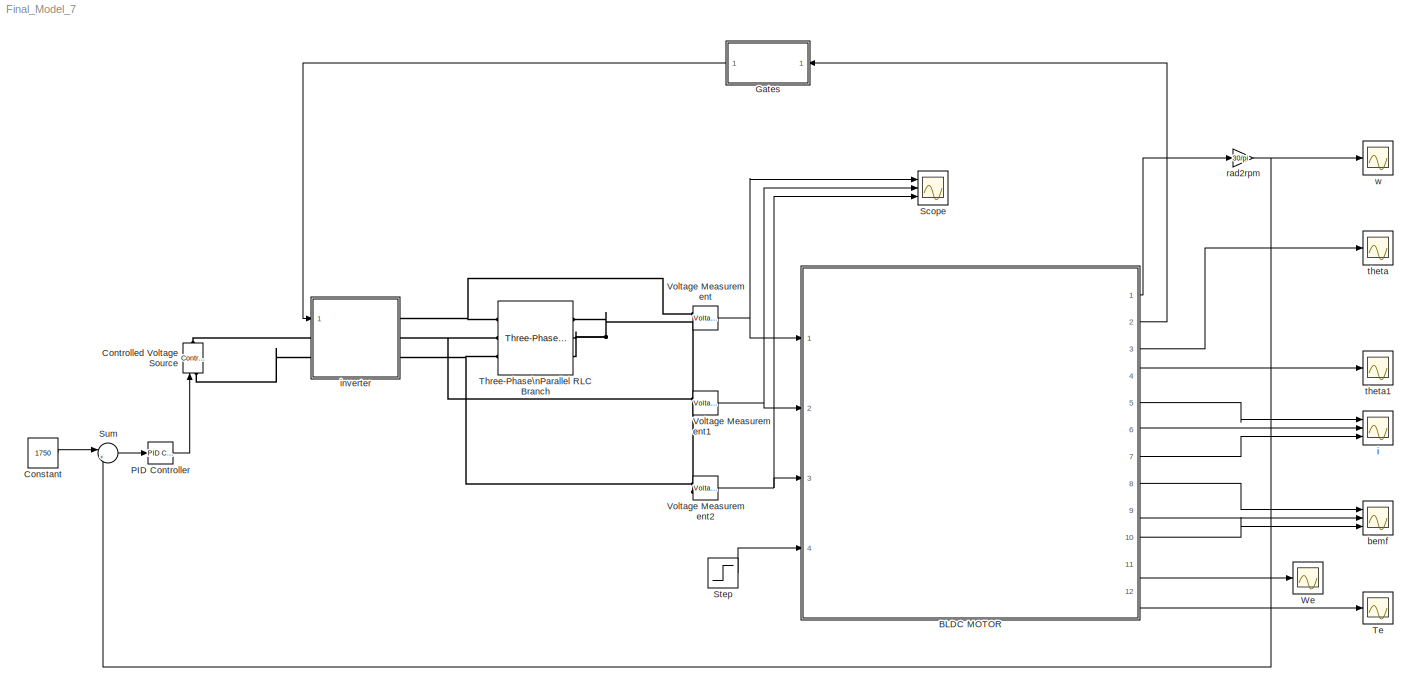
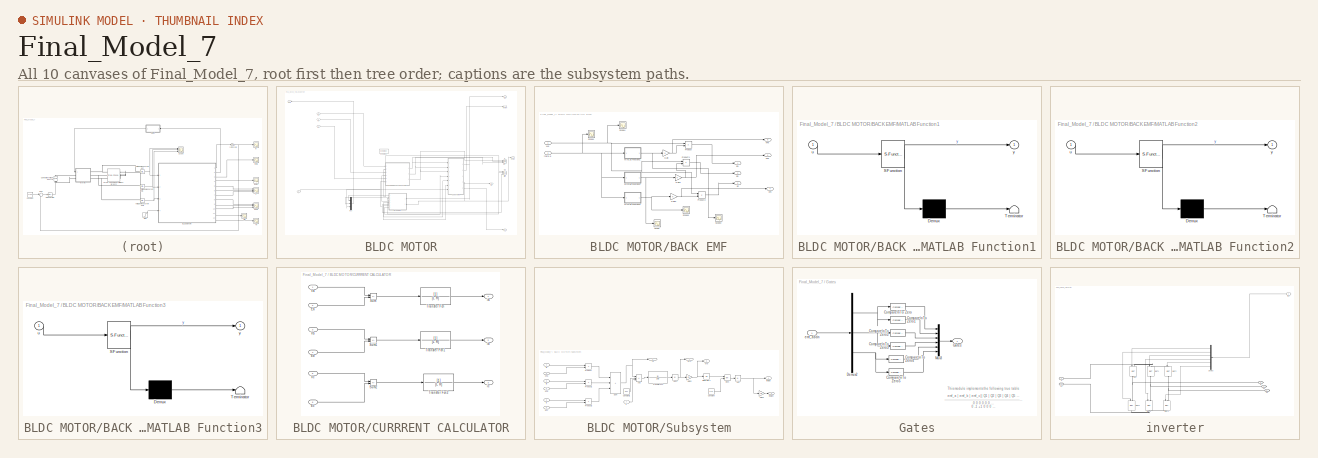
[diagram: thumbnail index - all 10 canvases of the model, root first then tree order]
MODEL Final_Model_7
KIND model
BLOCK [SubSystem] BLDC MOTOR
  Ports = [4, 12]
  RequestExecContextInheritance = off
  SID = 379
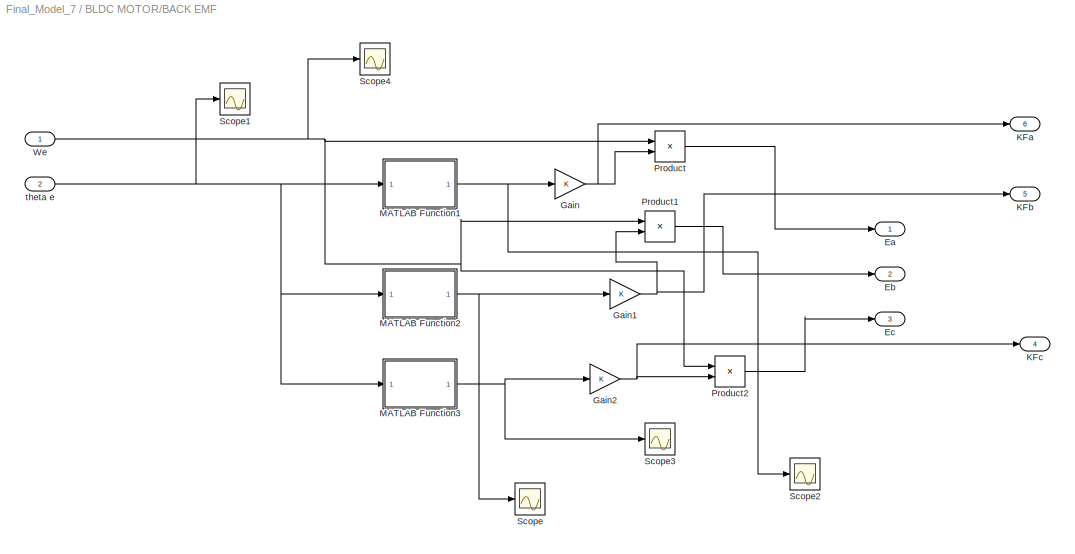
BLOCK [SubSystem] BLDC MOTOR/BACK EMF
  Ports = [2, 6]
  RequestExecContextInheritance = off
  SID = 146
BLOCK [Outport] BLDC MOTOR/BACK EMF/Ea
  SID = 148
BLOCK [Outport] BLDC MOTOR/BACK EMF/Eb
  Port = 2
  SID = 149
BLOCK [Outport] BLDC MOTOR/BACK EMF/Ec
  Port = 3
  SID = 150
BLOCK [Gain] BLDC MOTOR/BACK EMF/Gain
  Gain = K
  SID = 177
BLOCK [Gain] BLDC MOTOR/BACK EMF/Gain1
  Gain = K
  SID = 183
BLOCK [Gain] BLDC MOTOR/BACK EMF/Gain2
  Gain = K
  SID = 186
BLOCK [Outport] BLDC MOTOR/BACK EMF/KFa
  Port = 6
  SID = 187
BLOCK [Outport] BLDC MOTOR/BACK EMF/KFb
  Port = 5
  SID = 188
BLOCK [Outport] BLDC MOTOR/BACK EMF/KFc
  Port = 4
  SID = 189
BLOCK [SubSystem] BLDC MOTOR/BACK EMF/MATLAB Function1
  ErrorFcn = Stateflow.Translate.translate
  PermitHierarchicalResolution = ExplicitOnly
  Ports = [1, 1]
  RequestExecContextInheritance = off
  SFBlockType = MATLAB Function
  SID = 233
  TreatAsAtomicUnit = on
BLOCK [Demux] BLDC MOTOR/BACK EMF/MATLAB Function1/ Demux 
  Outputs = 1
  Ports = [1, 1]
  SID = 233::41
BLOCK [S-Function] BLDC MOTOR/BACK EMF/MATLAB Function1/ SFunction 
  EnableBusSupport = on
  FunctionName = sf_sfun
  PortCounts = [1 2]
  Ports = [1, 2]
  SFcnIsStateOwnerBlock = off
  SFunctionDeploymentMode = off
  SID = 233::40
  Tag = Stateflow S-Function 1
BLOCK [Terminator] BLDC MOTOR/BACK EMF/MATLAB Function1/ Terminator 
  SID = 233::42
BLOCK [Inport] BLDC MOTOR/BACK EMF/MATLAB Function1/u
  SID = 233::1
BLOCK [Outport] BLDC MOTOR/BACK EMF/MATLAB Function1/y
  SID = 233::5
BLOCK [SubSystem] BLDC MOTOR/BACK EMF/MATLAB Function2
  ErrorFcn = Stateflow.Translate.translate
  PermitHierarchicalResolution = ExplicitOnly
  Ports = [1, 1]
  RequestExecContextInheritance = off
  SFBlockType = MATLAB Function
  SID = 243
  TreatAsAtomicUnit = on
BLOCK [Demux] BLDC MOTOR/BACK EMF/MATLAB Function2/ Demux 
  Outputs = 1
  Ports = [1, 1]
  SID = 243::41
BLOCK [S-Function] BLDC MOTOR/BACK EMF/MATLAB Function2/ SFunction 
  EnableBusSupport = on
  FunctionName = sf_sfun
  PortCounts = [1 2]
  Ports = [1, 2]
  SFcnIsStateOwnerBlock = off
  SFunctionDeploymentMode = off
  SID = 243::40
  Tag = Stateflow S-Function 2
BLOCK [Terminator] BLDC MOTOR/BACK EMF/MATLAB Function2/ Terminator 
  SID = 243::42
BLOCK [Inport] BLDC MOTOR/BACK EMF/MATLAB Function2/u
  SID = 243::1
BLOCK [Outport] BLDC MOTOR/BACK EMF/MATLAB Function2/y
  SID = 243::5
BLOCK [SubSystem] BLDC MOTOR/BACK EMF/MATLAB Function3
  ErrorFcn = Stateflow.Translate.translate
  PermitHierarchicalResolution = ExplicitOnly
  Ports = [1, 1]
  RequestExecContextInheritance = off
  SFBlockType = MATLAB Function
  SID = 246
  TreatAsAtomicUnit = on
BLOCK [Demux] BLDC MOTOR/BACK EMF/MATLAB Function3/ Demux 
  Outputs = 1
  Ports = [1, 1]
  SID = 246::41
BLOCK [S-Function] BLDC MOTOR/BACK EMF/MATLAB Function3/ SFunction 
  EnableBusSupport = on
  FunctionName = sf_sfun
  PortCounts = [1 2]
  Ports = [1, 2]
  SFcnIsStateOwnerBlock = off
  SFunctionDeploymentMode = off
  SID = 246::40
  Tag = Stateflow S-Function 3
BLOCK [Terminator] BLDC MOTOR/BACK EMF/MATLAB Function3/ Terminator 
  SID = 246::42
BLOCK [Inport] BLDC MOTOR/BACK EMF/MATLAB Function3/u
  SID = 246::1
BLOCK [Outport] BLDC MOTOR/BACK EMF/MATLAB Function3/y
  SID = 246::5
BLOCK [Product] BLDC MOTOR/BACK EMF/Product
  Ports = [2, 1]
  SID = 178
BLOCK [Product] BLDC MOTOR/BACK EMF/Product1
  Ports = [2, 1]
  SID = 182
BLOCK [Product] BLDC MOTOR/BACK EMF/Product2
  Ports = [2, 1]
  SID = 185
BLOCK [Scope] BLDC MOTOR/BACK EMF/Scope
  Floating = off
  NumInputPorts = 1
  Ports = [1]
  SID = 283
  ScopeSpecificationString = Simulink.scopes.TimeScopeBlockCfg('CurrentConfiguration', extmgr.ConfigurationSet(extmgr.Configuration('Core','General UI',true,'FigureColor',[0.156862745098039 0.156862745098039 0.156862745098039]),extmgr.Configuration('Core','Source UI',true),extmgr.Configuration('Sources','WiredSimulink',true,'DataLoggingVariableName','ScopeData4','DataLoggingSaveFormat','StructureWithTime','DataLoggingDecimati...<+3138ch>
BLOCK [Scope] BLDC MOTOR/BACK EMF/Scope1
  Floating = off
  NumInputPorts = 1
  Ports = [1]
  SID = 253
  ScopeSpecificationString = Simulink.scopes.TimeScopeBlockCfg('CurrentConfiguration', extmgr.ConfigurationSet(extmgr.Configuration('Core','General UI',true,'FigureColor',[0.156862745098039 0.156862745098039 0.156862745098039]),extmgr.Configuration('Core','Source UI',true),extmgr.Configuration('Sources','WiredSimulink',true,'DataLoggingVariableName','ScopeData1','DataLoggingSaveFormat','StructureWithTime','DataLoggingDecimati...<+3124ch>
BLOCK [Scope] BLDC MOTOR/BACK EMF/Scope2
  Floating = off
  NumInputPorts = 1
  Ports = [1]
  SID = 284
  ScopeSpecificationString = Simulink.scopes.TimeScopeBlockCfg('CurrentConfiguration', extmgr.ConfigurationSet(extmgr.Configuration('Core','General UI',true,'FigureColor',[0.156862745098039 0.156862745098039 0.156862745098039]),extmgr.Configuration('Core','Source UI',true),extmgr.Configuration('Sources','WiredSimulink',true,'DataLoggingVariableName','ScopeData1','DataLoggingSaveFormat','StructureWithTime','DataLoggingDecimati...<+3121ch>
BLOCK [Scope] BLDC MOTOR/BACK EMF/Scope3
  Floating = off
  NumInputPorts = 1
  Ports = [1]
  SID = 285
  ScopeSpecificationString = Simulink.scopes.TimeScopeBlockCfg('CurrentConfiguration', extmgr.ConfigurationSet(extmgr.Configuration('Core','General UI',true,'FigureColor',[0.156862745098039 0.156862745098039 0.156862745098039]),extmgr.Configuration('Core','Source UI',true),extmgr.Configuration('Sources','WiredSimulink',true,'DataLoggingVariableName','ScopeData3','DataLoggingSaveFormat','StructureWithTime','DataLoggingDecimati...<+3122ch>
BLOCK [Scope] BLDC MOTOR/BACK EMF/Scope4
  Floating = off
  NumInputPorts = 1
  Ports = [1]
  SID = 276
  ScopeSpecificationString = Simulink.scopes.TimeScopeBlockCfg('CurrentConfiguration', extmgr.ConfigurationSet(extmgr.Configuration('Core','General UI',true,'FigureColor',[0.156862745098039 0.156862745098039 0.156862745098039]),extmgr.Configuration('Core','Source UI',true),extmgr.Configuration('Sources','WiredSimulink',true,'DataLoggingVariableName','ScopeData2','DataLoggingSaveFormat','StructureWithTime','DataLoggingDecimati...<+3127ch>
BLOCK [Inport] BLDC MOTOR/BACK EMF/We
  SID = 147
BLOCK [Inport] BLDC MOTOR/BACK EMF/theta e
  Port = 2
  SID = 172
BLOCK [SubSystem] BLDC MOTOR/CURRRENT CALCULATOR
  Ports = [6, 3]
  RequestExecContextInheritance = off
  SID = 120
BLOCK [Inport] BLDC MOTOR/CURRRENT CALCULATOR/Ea
  Port = 2
  SID = 122
BLOCK [Inport] BLDC MOTOR/CURRRENT CALCULATOR/Eb
  Port = 4
  SID = 124
BLOCK [Inport] BLDC MOTOR/CURRRENT CALCULATOR/Ec
  Port = 6
  SID = 126
BLOCK [Sum] BLDC MOTOR/CURRRENT CALCULATOR/Sum
  IconShape = rectangular
  Inputs = +-
  Ports = [2, 1]
  SID = 136
BLOCK [Sum] BLDC MOTOR/CURRRENT CALCULATOR/Sum1
  IconShape = rectangular
  Inputs = +-
  Ports = [2, 1]
  SID = 137
BLOCK [Sum] BLDC MOTOR/CURRRENT CALCULATOR/Sum2
  IconShape = rectangular
  Inputs = +-
  Ports = [2, 1]
  SID = 138
BLOCK [TransferFcn] BLDC MOTOR/CURRRENT CALCULATOR/Transfer Fcn
  Denominator = [L R]
  SID = 266
BLOCK [TransferFcn] BLDC MOTOR/CURRRENT CALCULATOR/Transfer Fcn1
  Denominator = [L R]
  SID = 267
BLOCK [TransferFcn] BLDC MOTOR/CURRRENT CALCULATOR/Transfer Fcn2
  Denominator = [L R]
  SID = 268
BLOCK [Inport] BLDC MOTOR/CURRRENT CALCULATOR/Va
  SID = 121
BLOCK [Inport] BLDC MOTOR/CURRRENT CALCULATOR/Vb
  Port = 3
  SID = 123
BLOCK [Inport] BLDC MOTOR/CURRRENT CALCULATOR/Vc
  Port = 5
  SID = 125
BLOCK [Outport] BLDC MOTOR/CURRRENT CALCULATOR/ia
  SID = 139
BLOCK [Outport] BLDC MOTOR/CURRRENT CALCULATOR/ib
  Port = 2
  SID = 140
BLOCK [Outport] BLDC MOTOR/CURRRENT CALCULATOR/ic
  Port = 3
  SID = 141
BLOCK [Outport] BLDC MOTOR/Ea
  Port = 8
  SID = 391
BLOCK [Outport] BLDC MOTOR/Eb
  Port = 9
  SID = 392
BLOCK [Outport] BLDC MOTOR/Ec
  Port = 10
  SID = 393
BLOCK [Mux] BLDC MOTOR/Mux
  DisplayOption = bar
  Inputs = 3
  Ports = [3, 1]
  SID = 303
BLOCK [Outport] BLDC MOTOR/Out2
  Port = 2
  SID = 385
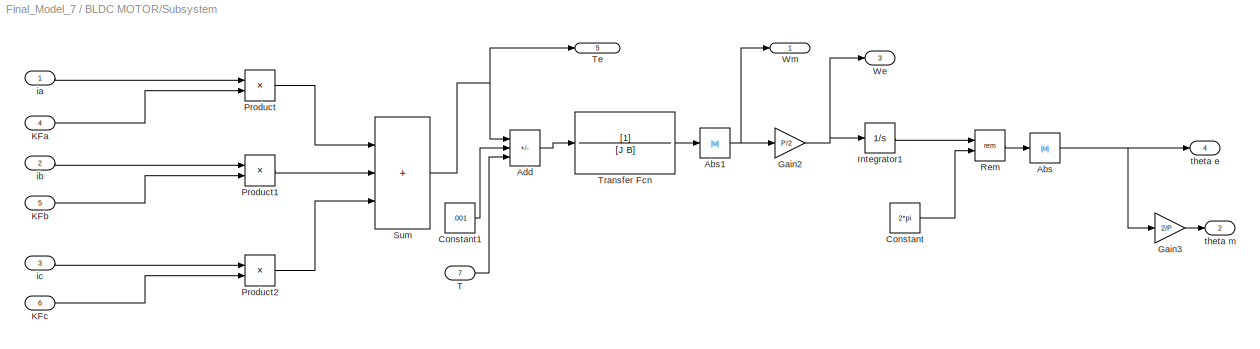
BLOCK [SubSystem] BLDC MOTOR/Subsystem
  Ports = [7, 5]
  RequestExecContextInheritance = off
  SID = 151
BLOCK [Abs] BLDC MOTOR/Subsystem/Abs
  SID = 373
  SaturateOnIntegerOverflow = off
BLOCK [Abs] BLDC MOTOR/Subsystem/Abs1
  SID = 400
  SaturateOnIntegerOverflow = off
BLOCK [Sum] BLDC MOTOR/Subsystem/Add
  IconShape = rectangular
  Inputs = ++-
  Ports = [3, 1]
  SID = 194
BLOCK [Constant] BLDC MOTOR/Subsystem/Constant
  SID = 249
  Value = 2*pi
BLOCK [Constant] BLDC MOTOR/Subsystem/Constant1
  SID = 456
  Value = .001
BLOCK [Gain] BLDC MOTOR/Subsystem/Gain2
  Gain = P/2
  SID = 201
BLOCK [Gain] BLDC MOTOR/Subsystem/Gain3
  Gain = 2/P
  SID = 204
BLOCK [Integrator] BLDC MOTOR/Subsystem/Integrator1
  Ports = [1, 1]
  SID = 202
BLOCK [Inport] BLDC MOTOR/Subsystem/KFa
  Port = 4
  SID = 190
BLOCK [Inport] BLDC MOTOR/Subsystem/KFb
  Port = 5
  SID = 191
BLOCK [Inport] BLDC MOTOR/Subsystem/KFc
  Port = 6
  SID = 192
BLOCK [Product] BLDC MOTOR/Subsystem/Product
  Ports = [2, 1]
  SID = 160
BLOCK [Product] BLDC MOTOR/Subsystem/Product1
  Ports = [2, 1]
  SID = 161
BLOCK [Product] BLDC MOTOR/Subsystem/Product2
  Ports = [2, 1]
  SID = 162
BLOCK [Math] BLDC MOTOR/Subsystem/Rem
  Operator = rem
  Ports = [2, 1]
  SID = 271
  SignedPower = on
BLOCK [Sum] BLDC MOTOR/Subsystem/Sum
  IconShape = rectangular
  Inputs = +++
  Ports = [3, 1]
  SID = 163
BLOCK [Inport] BLDC MOTOR/Subsystem/T
  Port = 7
  SID = 195
BLOCK [Outport] BLDC MOTOR/Subsystem/Te
  Port = 5
  SID = 261
BLOCK [TransferFcn] BLDC MOTOR/Subsystem/Transfer Fcn
  Denominator = [J B]
  SID = 260
BLOCK [Outport] BLDC MOTOR/Subsystem/We
  Port = 3
  SID = 166
BLOCK [Outport] BLDC MOTOR/Subsystem/Wm
  SID = 153
BLOCK [Inport] BLDC MOTOR/Subsystem/ia
  SID = 152
BLOCK [Inport] BLDC MOTOR/Subsystem/ib
  Port = 2
  SID = 155
BLOCK [Inport] BLDC MOTOR/Subsystem/ic
  Port = 3
  SID = 156
BLOCK [Outport] BLDC MOTOR/Subsystem/theta e
  Port = 4
  SID = 167
BLOCK [Outport] BLDC MOTOR/Subsystem/theta m
  Port = 2
  SID = 203
BLOCK [Inport] BLDC MOTOR/T
  Port = 4
  SID = 383
BLOCK [Outport] BLDC MOTOR/Te
  Port = 12
  SID = 395
BLOCK [Inport] BLDC MOTOR/Va
  SID = 380
BLOCK [Inport] BLDC MOTOR/Vb
  Port = 2
  SID = 381
BLOCK [Inport] BLDC MOTOR/Vc
  Port = 3
  SID = 382
BLOCK [Outport] BLDC MOTOR/We
  Port = 11
  SID = 394
BLOCK [Outport] BLDC MOTOR/Wm
  SID = 384
BLOCK [Outport] BLDC MOTOR/ia
  Port = 7
  SID = 390
BLOCK [Outport] BLDC MOTOR/ib
  Port = 6
  SID = 389
BLOCK [Outport] BLDC MOTOR/ic
  Port = 5
  SID = 388
BLOCK [Reference] BLDC MOTOR/powergui  REF=powerlib/powergui
  AutomaticDiscreteSolvers = off
  ContinueOnMaxIteration = off
  CurrentSourceSwitches = off
  DisableRonSwitches = off
  DisableSnubberDevices = off
  DisableVfSwitches = off
  DisplayEquations = off
  DisplayStyle = 1
  EnableUseOfTLC = off
  ErrMax = 1e-4
  ExternalGateDelay = off
  Frange = [0:2:500]
  FreqAxis = off
  FunctionMessages = off
  HookPort = off
  Interpol = off
  Iterations = 50
  MaxFrequency = 1000
  NonlinearTolerance = 1e-4
  Pbase = 100e6
  Ports = []
  Priority = 1
  RTWMemSecDataConstants = Inherit from model
  RTWMemSecDataInternal = Inherit from model
  RTWMemSecDataParameters = Inherit from model
  RTWMemSecFuncExecute = Inherit from model
  RTWMemSecFuncInitTerm = Inherit from model
  ResistiveCurrentMeasurement = off
  RestoreLinks = warning
  RmsSteady = 1
  SID = 364
  SPID = on
  SampleTime = 50e-6
  ShowGrid = off
  SolverType = Tustin/Backward Euler (TBE)
  SourceBlock = powerlib/powergui
  SourceProductBaseCode = PS
  SourceType = PSB option menu block
  StartTime = 0.0
  SwTol = 0
  Ts = 100
  UnitsV = kV
  UnitsW = MW
  Xlog = on
  Ylog = off
  ZoomFFT = off
  buscounter = 0
  cycles = 1
  display = off
  echomessages = off
  frequency = 60
  frequencyindice = 0
  frequencyindicesteady = 1
  fundamental = 60
  methode = off
  nMaxIteration = 100
  save = off
  structure = 0
  variable = ZData
  x0status = blocks
BLOCK [Outport] BLDC MOTOR/theta e
  Port = 4
  SID = 387
BLOCK [Outport] BLDC MOTOR/theta m
  Port = 3
  SID = 386
BLOCK [Constant] Constant
  SID = 457
  Value = 1750
BLOCK [Reference] Controlled Voltage Source  REF=powerlib/Electrical\nSources/Controlled Voltage Source
  Amplitude = 300
  Frequency = 50
  Initialize = on
  Measurements = Voltage
  NameLocation = right
  Phase = 0
  Ports = [1, 0, 0, 0, 0, 1, 1]
  RTWMemSecDataConstants = Inherit from model
  RTWMemSecDataInternal = Inherit from model
  RTWMemSecDataParameters = Inherit from model
  RTWMemSecFuncExecute = Inherit from model
  RTWMemSecFuncInitTerm = Inherit from model
  SID = 458
  SourceBlock = powerlib/Electrical\nSources/Controlled Voltage Source
  SourceProductBaseCode = PS
  SourceType = Controlled Voltage Source
  Source_Type = DC
BLOCK [SubSystem] Gates
  NameLocation = top
  Ports = [1, 1]
  RequestExecContextInheritance = off
  SID = 350
BLOCK [Reference] Gates/Compare\nTo Zero  REF=simulink/Logic and Bit\nOperations/Compare\nTo Zero
  OutDataTypeStr = boolean
  Ports = [1, 1]
  RTWMemSecDataConstants = Inherit from model
  RTWMemSecDataInternal = Inherit from model
  RTWMemSecDataParameters = Inherit from model
  RTWMemSecFuncExecute = Inherit from model
  RTWMemSecFuncInitTerm = Inherit from model
  SID = 352
  SourceBlock = simulink/Logic and Bit\nOperations/Compare\nTo Zero
  SourceProductBaseCode = SL
  SourceType = Compare To Zero
  ZeroCross = off
  relop = >
BLOCK [Reference] Gates/Compare\nTo Zero1  REF=simulink/Logic and Bit\nOperations/Compare\nTo Zero
  OutDataTypeStr = boolean
  Ports = [1, 1]
  RTWMemSecDataConstants = Inherit from model
  RTWMemSecDataInternal = Inherit from model
  RTWMemSecDataParameters = Inherit from model
  RTWMemSecFuncExecute = Inherit from model
  RTWMemSecFuncInitTerm = Inherit from model
  SID = 353
  SourceBlock = simulink/Logic and Bit\nOperations/Compare\nTo Zero
  SourceProductBaseCode = SL
  SourceType = Compare To Zero
  ZeroCross = off
  relop = <
BLOCK [Reference] Gates/Compare\nTo Zero2  REF=simulink/Logic and Bit\nOperations/Compare\nTo Zero
  OutDataTypeStr = boolean
  Ports = [1, 1]
  RTWMemSecDataConstants = Inherit from model
  RTWMemSecDataInternal = Inherit from model
  RTWMemSecDataParameters = Inherit from model
  RTWMemSecFuncExecute = Inherit from model
  RTWMemSecFuncInitTerm = Inherit from model
  SID = 354
  SourceBlock = simulink/Logic and Bit\nOperations/Compare\nTo Zero
  SourceProductBaseCode = SL
  SourceType = Compare To Zero
  ZeroCross = off
  relop = >
BLOCK [Reference] Gates/Compare\nTo Zero3  REF=simulink/Logic and Bit\nOperations/Compare\nTo Zero
  OutDataTypeStr = boolean
  Ports = [1, 1]
  RTWMemSecDataConstants = Inherit from model
  RTWMemSecDataInternal = Inherit from model
  RTWMemSecDataParameters = Inherit from model
  RTWMemSecFuncExecute = Inherit from model
  RTWMemSecFuncInitTerm = Inherit from model
  SID = 355
  SourceBlock = simulink/Logic and Bit\nOperations/Compare\nTo Zero
  SourceProductBaseCode = SL
  SourceType = Compare To Zero
  ZeroCross = off
  relop = <
BLOCK [Reference] Gates/Compare\nTo Zero4  REF=simulink/Logic and Bit\nOperations/Compare\nTo Zero
  OutDataTypeStr = boolean
  Ports = [1, 1]
  RTWMemSecDataConstants = Inherit from model
  RTWMemSecDataInternal = Inherit from model
  RTWMemSecDataParameters = Inherit from model
  RTWMemSecFuncExecute = Inherit from model
  RTWMemSecFuncInitTerm = Inherit from model
  SID = 356
  SourceBlock = simulink/Logic and Bit\nOperations/Compare\nTo Zero
  SourceProductBaseCode = SL
  SourceType = Compare To Zero
  ZeroCross = off
  relop = >
BLOCK [Reference] Gates/Compare\nTo Zero5  REF=simulink/Logic and Bit\nOperations/Compare\nTo Zero
  OutDataTypeStr = boolean
  Ports = [1, 1]
  RTWMemSecDataConstants = Inherit from model
  RTWMemSecDataInternal = Inherit from model
  RTWMemSecDataParameters = Inherit from model
  RTWMemSecFuncExecute = Inherit from model
  RTWMemSecFuncInitTerm = Inherit from model
  SID = 357
  SourceBlock = simulink/Logic and Bit\nOperations/Compare\nTo Zero
  SourceProductBaseCode = SL
  SourceType = Compare To Zero
  ZeroCross = off
  relop = <
BLOCK [Demux] Gates/Demux2
  Outputs = 3
  Ports = [1, 3]
  SID = 358
BLOCK [Outport] Gates/Gates
  SID = 360
BLOCK [Mux] Gates/Mux3
  DisplayOption = bar
  Inputs = 6
  Ports = [6, 1]
  SID = 359
BLOCK [Inport] Gates/emf_abc\n
  SID = 351
BLOCK [Reference] PID Controller  REF=simulink/Continuous/PID Controller
  AWVariant = Passthrough
  AntiWindupMode = none
  Controller = PI
  ControllerParametersSource = internal
  D = 0
  DGainOutDataTypeStr = Inherit: Inherit via internal rule
  DOutMax = []
  DOutMin = []
  DParamDataTypeStr = Inherit: Inherit via internal rule
  DParamMax = []
  DParamMin = []
  DProdOutDataTypeStr = Inherit: Inherit via internal rule
  DVariant = Disabled
  DerivativeFilterVariant = Disabled
  DifferentiatorICPrevScaledInput = 0
  DifferentiatorOutDataTypeStr = Inherit: Inherit via internal rule
  DifferentiatorOutMax = []
  DifferentiatorOutMin = []
  DivideOutDataTypeStr = Inherit: Inherit via internal rule
  DivideOutMax = []
  DivideOutMin = []
  ExternalReset = none
  ExternalResetVariant = Disabled
  FdbkBlocksVariant = Forward
  FilterContinuousStateAttributes = ''
  FilterDiffDenAccumDataTypeStr = Inherit: Inherit via internal rule
  FilterDiffDenProductOutputDataTypeStr = Inherit: Inherit via internal rule
  FilterDiffNumAccumDataTypeStr = Inherit: Inherit via internal rule
  FilterDiffNumProductOutputDataTypeStr = Inherit: Inherit via internal rule
  FilterDiffOutCoefDataTypeStr = Inherit: Inherit via internal rule
  FilterDiffOutCoefMax = []
  FilterDiffOutCoefMin = []
  FilterICVariant = Disabled
  FilterMethod = Forward Euler
  FilterOutDataTypeStr = Inherit: Inherit via internal rule
  FilterOutMax = []
  FilterOutMin = []
  FilterRTWStateStorageClass = Auto
  FilterStateMustResolveToSignalObject = off
  Form = Parallel
  I = 33.4987439489544
  IGainOutDataTypeStr = Inherit: Inherit via internal rule
  IOutMax = []
  IOutMin = []
  IParamDataTypeStr = Inherit: Inherit via internal rule
  IParamMax = []
  IParamMin = []
  IProdOutDataTypeStr = Inherit: Inherit via internal rule
  IVariant = InternalParameters
  IdealPFdbkVariant = Disabled
  IdealPVariant = Disabled
  IgnoreLimit = off
  InitialConditionForFilter = 0
  InitialConditionForIntegrator = 0
  InitialConditionSetting = Auto
  InitialConditionSource = internal
  IntegratorContinuousStateAttributes = ''
  IntegratorICVariant = InternalICs
  IntegratorMethod = Forward Euler
  IntegratorOutDataTypeStr = Inherit: Inherit via internal rule
  IntegratorOutMax = []
  IntegratorOutMin = []
  IntegratorRTWStateStorageClass = Auto
  IntegratorStateMustResolveToSignalObject = off
  IntegratorVariant = Continuous
  Kb = 1
  KbOutDataTypeStr = Inherit: Inherit via internal rule
  KbOutMax = []
  KbOutMin = []
  KbParamDataTypeStr = Inherit: Inherit via internal rule
  KbParamMax = []
  KbParamMin = []
  Kt = 1
  KtOutDataTypeStr = Inherit: Inherit via internal rule
  KtOutMax = []
  KtOutMin = []
  KtParamDataTypeStr = Inherit: Inherit via internal rule
  KtParamMax = []
  KtParamMin = []
  LimitOutput = off
  LinearizeAsGain = on
  LockScale = off
  LowerSaturationLimit = -inf
  N = 100
  NCopyVariant = Disabled_SignalSpec
  NGainOutDataTypeStr = Inherit: Inherit via internal rule
  NOutMax = []
  NOutMin = []
  NParamDataTypeStr = Inherit: Inherit via internal rule
  NParamMax = []
  NParamMin = []
  NProdOutDataTypeStr = Inherit: Inherit via internal rule
  NTsProdOutDataTypeStr = Inherit: Inherit via internal rule
  NTsProdOutMax = []
  NTsProdOutMin = []
  NVariant = Disabled
  P = 0.000000001
  PCopyVariant = Disabled
  PGainOutDataTypeStr = Inherit: Inherit via internal rule
  POutMax = []
  POutMin = []
  PParamDataTypeStr = Inherit: Inherit via internal rule
  PParamMax = []
  PParamMin = []
  PProdOutDataTypeStr = Inherit: Inherit via internal rule
  ParallelPVariant = InternalParameters
  Ports = [1, 1]
  RTWMemSecDataConstants = Inherit from model
  RTWMemSecDataInternal = Inherit from model
  RTWMemSecDataParameters = Inherit from model
  RTWMemSecFuncExecute = Inherit from model
  RTWMemSecFuncInitTerm = Inherit from model
  ReciprocalOutDataTypeStr = Inherit: Inherit via internal rule
  ReciprocalOutMax = []
  ReciprocalOutMin = []
  RndMeth = Floor
  SID = 459
  SampleTime = -1
  SatFdbkVariant = Disabled
  SatVariant = Disabled
  SaturateOnIntegerOverflow = off
  SaturationOutDataTypeStr = Inherit: Same as input
  SaturationOutMax = []
  SaturationOutMin = []
  SourceBlock = simulink/Continuous/PID Controller
  SourceProductBaseCode = SL
  SourceType = PID 1dof
  SumAccumDataTypeStr = Inherit: Inherit via internal rule
  SumDAccumDataTypeStr = Inherit: Inherit via internal rule
  SumDOutDataTypeStr = Inherit: Inherit via internal rule
  SumDOutMax = []
  SumDOutMin = []
  SumDenAccumDataTypeStr = Inherit: Inherit via internal rule
  SumDenOutDataTypeStr = Inherit: Inherit via internal rule
  SumDenOutMax = []
  SumDenOutMin = []
  SumFdbkVariant = Disabled
  SumI1AccumDataTypeStr = Inherit: Inherit via internal rule
  SumI1OutDataTypeStr = Inherit: Inherit via internal rule
  SumI1OutMax = []
  SumI1OutMin = []
  SumI2AccumDataTypeStr = Inherit: Inherit via internal rule
  SumI2OutDataTypeStr = Inherit: Inherit via internal rule
  SumI2OutMax = []
  SumI2OutMin = []
  SumI3AccumDataTypeStr = Inherit: Inherit via internal rule
  SumI3OutDataTypeStr = Inherit: Inherit via internal rule
  SumI3OutMax = []
  SumI3OutMin = []
  SumI4AccumDataTypeStr = Inherit: Inherit via internal rule
  SumI4OutDataTypeStr = Inherit: Inherit via internal rule
  SumI4OutMax = []
  SumI4OutMin = []
  SumNumAccumDataTypeStr = Inherit: Inherit via internal rule
  SumNumOutDataTypeStr = Inherit: Inherit via internal rule
  SumNumOutMax = []
  SumNumOutMin = []
  SumOutDataTypeStr = Inherit: Inherit via internal rule
  SumOutMax = []
  SumOutMin = []
  SumVariant = Sum_PI
  TRSumVariant = Passthrough
  TRVariant = Disabled
  TimeDomain = Continuous-time
  TrackingMode = off
  TsampFilterVariant = InternalTs
  TsampIntegralVariant = Passthrough
  TsampNgainVariant = Passthrough
  TunerSelectOption = Frequency Response Based
  UdiffTsProdOutDataTypeStr = Inherit: Inherit via internal rule
  UdiffTsProdOutMax = []
  UdiffTsProdOutMin = []
  UintegralTsProdOutDataTypeStr = Inherit: Inherit via internal rule
  UintegralTsProdOutMax = []
  UintegralTsProdOutMin = []
  UngainTsProdOutDataTypeStr = Inherit: Inherit via internal rule
  UngainTsProdOutMax = []
  UngainTsProdOutMin = []
  UpperSaturationLimit = inf
  UseExternalTs = off
  UseFilter = on
  ZeroCross = on
BLOCK [Scope] Scope
  Floating = off
  NumInputPorts = 3
  Ports = [3]
  SID = 423
  ScopeSpecificationString = Simulink.scopes.TimeScopeBlockCfg('CurrentConfiguration', extmgr.ConfigurationSet(extmgr.Configuration('Core','General UI',true),extmgr.Configuration('Core','Source UI',true),extmgr.Configuration('Sources','WiredSimulink',true,'DataLoggingVariableName','ScopeData1'),extmgr.Configuration('Visuals','Time Domain',true,'SerializedDisplays',{struct('MinYLimReal','-274.72524','MaxYLimReal','274.72524','...<+2874ch>
BLOCK [Step] Step
  After = 3
  SID = 264
  SampleTime = 0
  Time = 2
BLOCK [Sum] Sum
  Inputs = |+-
  Ports = [2, 1]
  SID = 460
BLOCK [Scope] Te
  Floating = off
  NumInputPorts = 1
  Ports = [1]
  SID = 273
  ScopeSpecificationString = Simulink.scopes.TimeScopeBlockCfg('CurrentConfiguration', extmgr.ConfigurationSet(extmgr.Configuration('Core','General UI',true,'FigureColor',[0.156862745098039 0.156862745098039 0.156862745098039]),extmgr.Configuration('Core','Source UI',true),extmgr.Configuration('Sources','WiredSimulink',true,'DataLoggingVariableName','ScopeData1','DataLoggingSaveFormat','StructureWithTime','DataLoggingDecimati...<+3219ch>
BLOCK [Reference] Three-Phase\nParallel RLC Branch  REF=powerlib/Elements/Three-Phase\nParallel RLC Branch
  AttributesFormatString = \\n
  BranchType = R
  Capacitance = 1e-6
  Inductance = 1e-3
  LConnTagsString = A|B|C
  Measurements = None
  Ports = [0, 0, 0, 0, 0, 3, 3]
  RConnTagsString = A|B|C
  Resistance = 1
  SID = 398
  SourceBlock = powerlib/Elements/Three-Phase\nParallel RLC Branch
  SourceProductBaseCode = PS
  SourceType = Three-Phase Parallel RLC Branch
BLOCK [Reference] Voltage Measurement  REF=powerlib/Measurements/Voltage Measurement
  OutputType = Complex
  PSBequivalent = 0
  PhasorSimulation = off
  Ports = [0, 1, 0, 0, 0, 2]
  RTWMemSecDataConstants = Inherit from model
  RTWMemSecDataInternal = Inherit from model
  RTWMemSecDataParameters = Inherit from model
  RTWMemSecFuncExecute = Inherit from model
  RTWMemSecFuncInitTerm = Inherit from model
  SID = 369
  SourceBlock = powerlib/Measurements/Voltage Measurement
  SourceProductBaseCode = PS
  SourceType = Voltage Measurement
  UserDataPersistent = on
BLOCK [Reference] Voltage Measurement1  REF=powerlib/Measurements/Voltage Measurement
  OutputType = Complex
  PSBequivalent = 0
  PhasorSimulation = off
  Ports = [0, 1, 0, 0, 0, 2]
  RTWMemSecDataConstants = Inherit from model
  RTWMemSecDataInternal = Inherit from model
  RTWMemSecDataParameters = Inherit from model
  RTWMemSecFuncExecute = Inherit from model
  RTWMemSecFuncInitTerm = Inherit from model
  SID = 370
  SourceBlock = powerlib/Measurements/Voltage Measurement
  SourceProductBaseCode = PS
  SourceType = Voltage Measurement
  UserDataPersistent = on
BLOCK [Reference] Voltage Measurement2  REF=powerlib/Measurements/Voltage Measurement
  OutputType = Complex
  PSBequivalent = 0
  PhasorSimulation = off
  Ports = [0, 1, 0, 0, 0, 2]
  RTWMemSecDataConstants = Inherit from model
  RTWMemSecDataInternal = Inherit from model
  RTWMemSecDataParameters = Inherit from model
  RTWMemSecFuncExecute = Inherit from model
  RTWMemSecFuncInitTerm = Inherit from model
  SID = 371
  SourceBlock = powerlib/Measurements/Voltage Measurement
  SourceProductBaseCode = PS
  SourceType = Voltage Measurement
  UserDataPersistent = on
BLOCK [Scope] We
  Floating = off
  NumInputPorts = 1
  Ports = [1]
  SID = 461
  ScopeSpecificationString = Simulink.scopes.TimeScopeBlockCfg('CurrentConfiguration', extmgr.ConfigurationSet(extmgr.Configuration('Core','General UI',true,'FigureColor',[0.156862745098039 0.156862745098039 0.156862745098039]),extmgr.Configuration('Core','Source UI',true),extmgr.Configuration('Sources','WiredSimulink',true,'DataLoggingVariableName','ScopeData1','DataLoggingSaveFormat','StructureWithTime','DataLoggingDecimati...<+3204ch>
BLOCK [Scope] bemf
  Floating = off
  NumInputPorts = 3
  Ports = [3]
  SID = 228
  ScopeSpecificationString = Simulink.scopes.TimeScopeBlockCfg('CurrentConfiguration', extmgr.ConfigurationSet(extmgr.Configuration('Core','General UI',true,'FigureColor',[0.156862745098039 0.156862745098039 0.156862745098039]),extmgr.Configuration('Core','Source UI',true),extmgr.Configuration('Sources','WiredSimulink',true,'DataLoggingVariableName','ScopeData3','DataLoggingSaveFormat','StructureWithTime','DataLoggingDecimati...<+2418ch>
BLOCK [Scope] i
  Floating = off
  NumInputPorts = 3
  Ports = [3]
  SID = 227
  ScopeSpecificationString = Simulink.scopes.TimeScopeBlockCfg('CurrentConfiguration', extmgr.ConfigurationSet(extmgr.Configuration('Core','General UI',true,'FigureColor',[0.156862745098039 0.156862745098039 0.156862745098039]),extmgr.Configuration('Core','Source UI',true),extmgr.Configuration('Sources','WiredSimulink',true,'DataLoggingVariableName','ScopeData2','DataLoggingSaveFormat','StructureWithTime','DataLoggingDecimati...<+2421ch>
BLOCK [SubSystem] inverter
  Ports = [1, 0, 0, 0, 0, 2, 3]
  RequestExecContextInheritance = off
  SID = 449
BLOCK [PMIOPort] inverter/C
  SID = 451
  Side = Left
BLOCK [PMIOPort] inverter/C1
  Port = 4
  SID = 454
  Side = Right
BLOCK [PMIOPort] inverter/C2
  Port = 5
  SID = 455
  Side = Right
BLOCK [Demux] inverter/Demux
  NameLocation = top
  Outputs = 6
  Ports = [1, 6]
  SID = 447
BLOCK [PMIOPort] inverter/E
  Port = 2
  SID = 452
  Side = Right
BLOCK [PMIOPort] inverter/E1
  Port = 3
  SID = 453
  Side = Left
BLOCK [Reference] inverter/IGBT  REF=powerlib/Power\nElectronics/IGBT
  Cs = inf
  IC = 0
  Lon = 0
  Measurements = off
  NameLocation = left
  Ports = [1, 0, 0, 0, 0, 1, 1]
  RTWMemSecDataConstants = Inherit from model
  RTWMemSecDataInternal = Inherit from model
  RTWMemSecDataParameters = Inherit from model
  RTWMemSecFuncExecute = Inherit from model
  RTWMemSecFuncInitTerm = Inherit from model
  Ron = 0.001
  Rs = 1e5
  SID = 426
  SourceBlock = powerlib/Power\nElectronics/IGBT
  SourceProductBaseCode = PS
  SourceType = IGBT
  Tf = 1e-6
  Tt = 2e-6
  Vf = 0
BLOCK [Reference] inverter/IGBT1  REF=powerlib/Power\nElectronics/IGBT
  Cs = inf
  IC = 0
  Lon = 0
  Measurements = off
  NameLocation = left
  Ports = [1, 0, 0, 0, 0, 1, 1]
  RTWMemSecDataConstants = Inherit from model
  RTWMemSecDataInternal = Inherit from model
  RTWMemSecDataParameters = Inherit from model
  RTWMemSecFuncExecute = Inherit from model
  RTWMemSecFuncInitTerm = Inherit from model
  Ron = 0.001
  Rs = 1e5
  SID = 427
  SourceBlock = powerlib/Power\nElectronics/IGBT
  SourceProductBaseCode = PS
  SourceType = IGBT
  Tf = 1e-6
  Tt = 2e-6
  Vf = 0
BLOCK [Reference] inverter/IGBT2  REF=powerlib/Power\nElectronics/IGBT
  Cs = inf
  IC = 0
  Lon = 0
  Measurements = off
  NameLocation = left
  Ports = [1, 0, 0, 0, 0, 1, 1]
  RTWMemSecDataConstants = Inherit from model
  RTWMemSecDataInternal = Inherit from model
  RTWMemSecDataParameters = Inherit from model
  RTWMemSecFuncExecute = Inherit from model
  RTWMemSecFuncInitTerm = Inherit from model
  Ron = 0.001
  Rs = 1e5
  SID = 428
  SourceBlock = powerlib/Power\nElectronics/IGBT
  SourceProductBaseCode = PS
  SourceType = IGBT
  Tf = 1e-6
  Tt = 2e-6
  Vf = 0
BLOCK [Reference] inverter/IGBT3  REF=powerlib/Power\nElectronics/IGBT
  Cs = inf
  IC = 0
  Lon = 0
  Measurements = off
  NameLocation = left
  Ports = [1, 0, 0, 0, 0, 1, 1]
  RTWMemSecDataConstants = Inherit from model
  RTWMemSecDataInternal = Inherit from model
  RTWMemSecDataParameters = Inherit from model
  RTWMemSecFuncExecute = Inherit from model
  RTWMemSecFuncInitTerm = Inherit from model
  Ron = 0.001
  Rs = 1e5
  SID = 429
  SourceBlock = powerlib/Power\nElectronics/IGBT
  SourceProductBaseCode = PS
  SourceType = IGBT
  Tf = 1e-6
  Tt = 2e-6
  Vf = 0
BLOCK [Reference] inverter/IGBT4  REF=powerlib/Power\nElectronics/IGBT
  Cs = inf
  IC = 0
  Lon = 0
  Measurements = off
  NameLocation = left
  Ports = [1, 0, 0, 0, 0, 1, 1]
  RTWMemSecDataConstants = Inherit from model
  RTWMemSecDataInternal = Inherit from model
  RTWMemSecDataParameters = Inherit from model
  RTWMemSecFuncExecute = Inherit from model
  RTWMemSecFuncInitTerm = Inherit from model
  Ron = 0.001
  Rs = 1e5
  SID = 430
  SourceBlock = powerlib/Power\nElectronics/IGBT
  SourceProductBaseCode = PS
  SourceType = IGBT
  Tf = 1e-6
  Tt = 2e-6
  Vf = 0
BLOCK [Reference] inverter/IGBT5  REF=powerlib/Power\nElectronics/IGBT
  Cs = inf
  IC = 0
  Lon = 0
  Measurements = off
  NameLocation = left
  Ports = [1, 0, 0, 0, 0, 1, 1]
  RTWMemSecDataConstants = Inherit from model
  RTWMemSecDataInternal = Inherit from model
  RTWMemSecDataParameters = Inherit from model
  RTWMemSecFuncExecute = Inherit from model
  RTWMemSecFuncInitTerm = Inherit from model
  Ron = 0.001
  Rs = 1e5
  SID = 431
  SourceBlock = powerlib/Power\nElectronics/IGBT
  SourceProductBaseCode = PS
  SourceType = IGBT
  Tf = 1e-6
  Tt = 2e-6
  Vf = 0
BLOCK [Inport] inverter/In1
  SID = 450
BLOCK [Gain] rad2rpm
  Gain = 30/pi
  SID = 462
BLOCK [Scope] theta
  Floating = off
  NumInputPorts = 1
  Ports = [1]
  SID = 226
  ScopeSpecificationString = Simulink.scopes.TimeScopeBlockCfg('CurrentConfiguration', extmgr.ConfigurationSet(extmgr.Configuration('Core','General UI',true,'FigureColor',[0.156862745098039 0.156862745098039 0.156862745098039]),extmgr.Configuration('Core','Source UI',true),extmgr.Configuration('Sources','WiredSimulink',true,'DataLoggingVariableName','ScopeData1','DataLoggingSaveFormat','StructureWithTime','DataLoggingDecimati...<+3126ch>
BLOCK [Scope] theta1
  Floating = off
  NumInputPorts = 1
  Ports = [1]
  SID = 286
  ScopeSpecificationString = Simulink.scopes.TimeScopeBlockCfg('CurrentConfiguration', extmgr.ConfigurationSet(extmgr.Configuration('Core','General UI',true,'FigureColor',[0.156862745098039 0.156862745098039 0.156862745098039]),extmgr.Configuration('Core','Source UI',true),extmgr.Configuration('Sources','WiredSimulink',true,'DataLoggingVariableName','ScopeData5','DataLoggingSaveFormat','StructureWithTime','DataLoggingDecimati...<+3175ch>
BLOCK [Scope] w
  Floating = off
  NumInputPorts = 1
  Ports = [1]
  SID = 225
  ScopeSpecificationString = Simulink.scopes.TimeScopeBlockCfg('CurrentConfiguration', extmgr.ConfigurationSet(extmgr.Configuration('Core','General UI',true,'FigureColor',[0.156862745098039 0.156862745098039 0.156862745098039]),extmgr.Configuration('Core','Source UI',true),extmgr.Configuration('Sources','WiredSimulink',true,'DataLoggingSaveFormat','StructureWithTime','DataLoggingDecimation','1','DataLoggingDecimateData',true)...<+3194ch>
ANNOTATION Gates: This module implements the following true table\n\n emf_a | emf_b | emf_c || Q1 | Q2 | Q3 | Q4 | Q5 | Q6\n ------------------------------------------------------------------------------------------------------------------\n 0 0 0 0 0 0 0 0 0\n 0 -1 +1 0 0 0 1 1 0\n -1 +1 0 0 1 1 0 0 0\n -1 0 +1 0 1 0 0 1 0\n +1 0 -1 1 0 0 0 0 1\n +1 -1 0 1 0 0 1 0 0\n 0 +1 -1 0 0 1 0 0 1\n 0 0 0 0 0 0 0 0 0\n
NET BLDC MOTOR/BACK EMF/Gain1:1 -> BLDC MOTOR/BACK EMF/KFb:1, BLDC MOTOR/BACK EMF/Product1:2
NET BLDC MOTOR/BACK EMF/Gain2:1 -> BLDC MOTOR/BACK EMF/KFc:1, BLDC MOTOR/BACK EMF/Product2:2
NET BLDC MOTOR/BACK EMF/Gain:1 -> BLDC MOTOR/BACK EMF/KFa:1, BLDC MOTOR/BACK EMF/Product:2
LINE BLDC MOTOR/BACK EMF/MATLAB Function1/ Demux :1 -> BLDC MOTOR/BACK EMF/MATLAB Function1/ Terminator :1
LINE BLDC MOTOR/BACK EMF/MATLAB Function1/ SFunction :1 -> BLDC MOTOR/BACK EMF/MATLAB Function1/ Demux :1
LINE BLDC MOTOR/BACK EMF/MATLAB Function1/ SFunction :2 -> BLDC MOTOR/BACK EMF/MATLAB Function1/y:1
LINE BLDC MOTOR/BACK EMF/MATLAB Function1/u:1 -> BLDC MOTOR/BACK EMF/MATLAB Function1/ SFunction :1
NET BLDC MOTOR/BACK EMF/MATLAB Function1:1 -> BLDC MOTOR/BACK EMF/Gain:1, BLDC MOTOR/BACK EMF/Scope2:1
LINE BLDC MOTOR/BACK EMF/MATLAB Function2/ Demux :1 -> BLDC MOTOR/BACK EMF/MATLAB Function2/ Terminator :1
LINE BLDC MOTOR/BACK EMF/MATLAB Function2/ SFunction :1 -> BLDC MOTOR/BACK EMF/MATLAB Function2/ Demux :1
LINE BLDC MOTOR/BACK EMF/MATLAB Function2/ SFunction :2 -> BLDC MOTOR/BACK EMF/MATLAB Function2/y:1
LINE BLDC MOTOR/BACK EMF/MATLAB Function2/u:1 -> BLDC MOTOR/BACK EMF/MATLAB Function2/ SFunction :1
NET BLDC MOTOR/BACK EMF/MATLAB Function2:1 -> BLDC MOTOR/BACK EMF/Gain1:1, BLDC MOTOR/BACK EMF/Scope:1
LINE BLDC MOTOR/BACK EMF/MATLAB Function3/ Demux :1 -> BLDC MOTOR/BACK EMF/MATLAB Function3/ Terminator :1
LINE BLDC MOTOR/BACK EMF/MATLAB Function3/ SFunction :1 -> BLDC MOTOR/BACK EMF/MATLAB Function3/ Demux :1
LINE BLDC MOTOR/BACK EMF/MATLAB Function3/ SFunction :2 -> BLDC MOTOR/BACK EMF/MATLAB Function3/y:1
LINE BLDC MOTOR/BACK EMF/MATLAB Function3/u:1 -> BLDC MOTOR/BACK EMF/MATLAB Function3/ SFunction :1
NET BLDC MOTOR/BACK EMF/MATLAB Function3:1 -> BLDC MOTOR/BACK EMF/Gain2:1, BLDC MOTOR/BACK EMF/Scope3:1
LINE BLDC MOTOR/BACK EMF/Product1:1 -> BLDC MOTOR/BACK EMF/Eb:1
LINE BLDC MOTOR/BACK EMF/Product2:1 -> BLDC MOTOR/BACK EMF/Ec:1
LINE BLDC MOTOR/BACK EMF/Product:1 -> BLDC MOTOR/BACK EMF/Ea:1
NET BLDC MOTOR/BACK EMF/We:1 -> BLDC MOTOR/BACK EMF/Product1:1, BLDC MOTOR/BACK EMF/Product2:1, BLDC MOTOR/BACK EMF/Product:1, BLDC MOTOR/BACK EMF/Scope4:1
NET BLDC MOTOR/BACK EMF/theta e:1 -> BLDC MOTOR/BACK EMF/MATLAB Function1:1, BLDC MOTOR/BACK EMF/MATLAB Function2:1, BLDC MOTOR/BACK EMF/MATLAB Function3:1, BLDC MOTOR/BACK EMF/Scope1:1
NET BLDC MOTOR/BACK EMF:1 -> BLDC MOTOR/CURRRENT CALCULATOR:2, BLDC MOTOR/Ea:1, BLDC MOTOR/Mux:1
NET BLDC MOTOR/BACK EMF:2 -> BLDC MOTOR/CURRRENT CALCULATOR:4, BLDC MOTOR/Eb:1, BLDC MOTOR/Mux:2
NET BLDC MOTOR/BACK EMF:3 -> BLDC MOTOR/CURRRENT CALCULATOR:6, BLDC MOTOR/Ec:1, BLDC MOTOR/Mux:3
LINE BLDC MOTOR/BACK EMF:4 -> BLDC MOTOR/Subsystem:6
LINE BLDC MOTOR/BACK EMF:5 -> BLDC MOTOR/Subsystem:5
LINE BLDC MOTOR/BACK EMF:6 -> BLDC MOTOR/Subsystem:4
LINE BLDC MOTOR/CURRRENT CALCULATOR/Ea:1 -> BLDC MOTOR/CURRRENT CALCULATOR/Sum:2
LINE BLDC MOTOR/CURRRENT CALCULATOR/Eb:1 -> BLDC MOTOR/CURRRENT CALCULATOR/Sum1:2
LINE BLDC MOTOR/CURRRENT CALCULATOR/Ec:1 -> BLDC MOTOR/CURRRENT CALCULATOR/Sum2:2
LINE BLDC MOTOR/CURRRENT CALCULATOR/Sum1:1 -> BLDC MOTOR/CURRRENT CALCULATOR/Transfer Fcn1:1
LINE BLDC MOTOR/CURRRENT CALCULATOR/Sum2:1 -> BLDC MOTOR/CURRRENT CALCULATOR/Transfer Fcn2:1
LINE BLDC MOTOR/CURRRENT CALCULATOR/Sum:1 -> BLDC MOTOR/CURRRENT CALCULATOR/Transfer Fcn:1
LINE BLDC MOTOR/CURRRENT CALCULATOR/Transfer Fcn1:1 -> BLDC MOTOR/CURRRENT CALCULATOR/ib:1
LINE BLDC MOTOR/CURRRENT CALCULATOR/Transfer Fcn2:1 -> BLDC MOTOR/CURRRENT CALCULATOR/ic:1
LINE BLDC MOTOR/CURRRENT CALCULATOR/Transfer Fcn:1 -> BLDC MOTOR/CURRRENT CALCULATOR/ia:1
LINE BLDC MOTOR/CURRRENT CALCULATOR/Va:1 -> BLDC MOTOR/CURRRENT CALCULATOR/Sum:1
LINE BLDC MOTOR/CURRRENT CALCULATOR/Vb:1 -> BLDC MOTOR/CURRRENT CALCULATOR/Sum1:1
LINE BLDC MOTOR/CURRRENT CALCULATOR/Vc:1 -> BLDC MOTOR/CURRRENT CALCULATOR/Sum2:1
NET BLDC MOTOR/CURRRENT CALCULATOR:1 -> BLDC MOTOR/Subsystem:1, BLDC MOTOR/ia:1
NET BLDC MOTOR/CURRRENT CALCULATOR:2 -> BLDC MOTOR/Subsystem:2, BLDC MOTOR/ib:1
NET BLDC MOTOR/CURRRENT CALCULATOR:3 -> BLDC MOTOR/Subsystem:3, BLDC MOTOR/ic:1
LINE BLDC MOTOR/Mux:1 -> BLDC MOTOR/Out2:1
NET BLDC MOTOR/Subsystem/Abs1:1 -> BLDC MOTOR/Subsystem/Gain2:1, BLDC MOTOR/Subsystem/Wm:1
NET BLDC MOTOR/Subsystem/Abs:1 -> BLDC MOTOR/Subsystem/Gain3:1, BLDC MOTOR/Subsystem/theta e:1
LINE BLDC MOTOR/Subsystem/Add:1 -> BLDC MOTOR/Subsystem/Transfer Fcn:1
LINE BLDC MOTOR/Subsystem/Constant1:1 -> BLDC MOTOR/Subsystem/Add:2
LINE BLDC MOTOR/Subsystem/Constant:1 -> BLDC MOTOR/Subsystem/Rem:2
NET BLDC MOTOR/Subsystem/Gain2:1 -> BLDC MOTOR/Subsystem/Integrator1:1, BLDC MOTOR/Subsystem/We:1
LINE BLDC MOTOR/Subsystem/Gain3:1 -> BLDC MOTOR/Subsystem/theta m:1
LINE BLDC MOTOR/Subsystem/Integrator1:1 -> BLDC MOTOR/Subsystem/Rem:1
LINE BLDC MOTOR/Subsystem/KFa:1 -> BLDC MOTOR/Subsystem/Product:2
LINE BLDC MOTOR/Subsystem/KFb:1 -> BLDC MOTOR/Subsystem/Product1:2
LINE BLDC MOTOR/Subsystem/KFc:1 -> BLDC MOTOR/Subsystem/Product2:2
LINE BLDC MOTOR/Subsystem/Product1:1 -> BLDC MOTOR/Subsystem/Sum:2
LINE BLDC MOTOR/Subsystem/Product2:1 -> BLDC MOTOR/Subsystem/Sum:3
LINE BLDC MOTOR/Subsystem/Product:1 -> BLDC MOTOR/Subsystem/Sum:1
LINE BLDC MOTOR/Subsystem/Rem:1 -> BLDC MOTOR/Subsystem/Abs:1
NET BLDC MOTOR/Subsystem/Sum:1 -> BLDC MOTOR/Subsystem/Add:1, BLDC MOTOR/Subsystem/Te:1
LINE BLDC MOTOR/Subsystem/T:1 -> BLDC MOTOR/Subsystem/Add:3
LINE BLDC MOTOR/Subsystem/Transfer Fcn:1 -> BLDC MOTOR/Subsystem/Abs1:1
LINE BLDC MOTOR/Subsystem/ia:1 -> BLDC MOTOR/Subsystem/Product:1
LINE BLDC MOTOR/Subsystem/ib:1 -> BLDC MOTOR/Subsystem/Product1:1
LINE BLDC MOTOR/Subsystem/ic:1 -> BLDC MOTOR/Subsystem/Product2:1
NET BLDC MOTOR/Subsystem:1 -> BLDC MOTOR/BACK EMF:1, BLDC MOTOR/Wm:1
LINE BLDC MOTOR/Subsystem:2 -> BLDC MOTOR/theta m:1
LINE BLDC MOTOR/Subsystem:3 -> BLDC MOTOR/We:1
NET BLDC MOTOR/Subsystem:4 -> BLDC MOTOR/BACK EMF:2, BLDC MOTOR/theta e:1
LINE BLDC MOTOR/Subsystem:5 -> BLDC MOTOR/Te:1
LINE BLDC MOTOR/T:1 -> BLDC MOTOR/Subsystem:7
LINE BLDC MOTOR/Va:1 -> BLDC MOTOR/CURRRENT CALCULATOR:1
LINE BLDC MOTOR/Vb:1 -> BLDC MOTOR/CURRRENT CALCULATOR:3
LINE BLDC MOTOR/Vc:1 -> BLDC MOTOR/CURRRENT CALCULATOR:5
LINE BLDC MOTOR:1 -> rad2rpm:1
LINE BLDC MOTOR:10 -> bemf:3
LINE BLDC MOTOR:11 -> We:1
LINE BLDC MOTOR:12 -> Te:1
LINE BLDC MOTOR:2 -> Gates:1
LINE BLDC MOTOR:3 -> theta:1
LINE BLDC MOTOR:4 -> theta1:1
LINE BLDC MOTOR:5 -> i:1
LINE BLDC MOTOR:6 -> i:2
LINE BLDC MOTOR:7 -> i:3
LINE BLDC MOTOR:8 -> bemf:1
LINE BLDC MOTOR:9 -> bemf:2
LINE Constant:1 -> Sum:1
LINE Gates/Compare\nTo Zero1:1 -> Gates/Mux3:2
LINE Gates/Compare\nTo Zero2:1 -> Gates/Mux3:3
LINE Gates/Compare\nTo Zero3:1 -> Gates/Mux3:4
LINE Gates/Compare\nTo Zero4:1 -> Gates/Mux3:5
LINE Gates/Compare\nTo Zero5:1 -> Gates/Mux3:6
LINE Gates/Compare\nTo Zero:1 -> Gates/Mux3:1
NET Gates/Demux2:1 -> Gates/Compare\nTo Zero1:1, Gates/Compare\nTo Zero:1
NET Gates/Demux2:2 -> Gates/Compare\nTo Zero2:1, Gates/Compare\nTo Zero3:1
NET Gates/Demux2:3 -> Gates/Compare\nTo Zero4:1, Gates/Compare\nTo Zero5:1
LINE Gates/Mux3:1 -> Gates/Gates:1
LINE Gates/emf_abc\n:1 -> Gates/Demux2:1
LINE Gates:1 -> inverter:1
LINE PID Controller:1 -> Controlled Voltage Source:1
LINE Step:1 -> BLDC MOTOR:4
LINE Sum:1 -> PID Controller:1
NET Voltage Measurement1:1 -> BLDC MOTOR:2, Scope:2
NET Voltage Measurement2:1 -> BLDC MOTOR:3, Scope:3
NET Voltage Measurement:1 -> BLDC MOTOR:1, Scope:1
LINE inverter/Demux:1 -> inverter/IGBT:1
LINE inverter/Demux:2 -> inverter/IGBT5:1
LINE inverter/Demux:3 -> inverter/IGBT1:1
LINE inverter/Demux:4 -> inverter/IGBT4:1
LINE inverter/Demux:5 -> inverter/IGBT2:1
LINE inverter/Demux:6 -> inverter/IGBT3:1
LINE inverter/In1:1 -> inverter/Demux:1
NET rad2rpm:1 -> Sum:2, w:1
PLINE Controlled Voltage Source:LConn1 -- inverter:LConn2
PLINE Controlled Voltage Source:RConn1 -- inverter:LConn1
PNET net1: Three-Phase\nParallel RLC Branch:LConn1 -- Voltage Measurement:LConn1 -- inverter:RConn1
PNET net2: Three-Phase\nParallel RLC Branch:LConn2 -- Voltage Measurement1:LConn1 -- inverter:RConn2
PNET net3: Three-Phase\nParallel RLC Branch:LConn3 -- Voltage Measurement2:LConn1 -- inverter:RConn3
PNET net4: Three-Phase\nParallel RLC Branch:RConn1 -- Three-Phase\nParallel RLC Branch:RConn2 -- Three-Phase\nParallel RLC Branch:RConn3 -- Voltage Measurement1:LConn2 -- Voltage Measurement2:LConn2 -- Voltage Measurement:LConn2
PNET net5: inverter/C1:RConn1 -- inverter/IGBT1:RConn1 -- inverter/IGBT4:LConn1
PNET net6: inverter/C2:RConn1 -- inverter/IGBT2:RConn1 -- inverter/IGBT3:LConn1
PNET net7: inverter/C:RConn1 -- inverter/IGBT1:LConn1 -- inverter/IGBT2:LConn1 -- inverter/IGBT:LConn1
PNET net8: inverter/E1:RConn1 -- inverter/IGBT3:RConn1 -- inverter/IGBT4:RConn1 -- inverter/IGBT5:RConn1
PNET net9: inverter/E:RConn1 -- inverter/IGBT5:LConn1 -- inverter/IGBT:RConn1
note: NET lines group one-source signal fan-out (src -> all destinations, sorted); 1:1 wires keep LINE; PNET lines group multi-terminal physical nets as a canonical sorted terminal list (undirected conserving connections); 2-terminal nets keep the pairwise PLINE form
CHART BLDC MOTOR/BACK EMF/MATLAB Function1 states=1 transitions=1
  STATE_LABEL 'eML_blk_kernel()'
CHART BLDC MOTOR/BACK EMF/MATLAB Function2 states=1 transitions=1
  STATE_LABEL 'eML_blk_kernel()'
CHART BLDC MOTOR/BACK EMF/MATLAB Function3 states=1 transitions=1
  STATE_LABEL 'eML_blk_kernel()'
